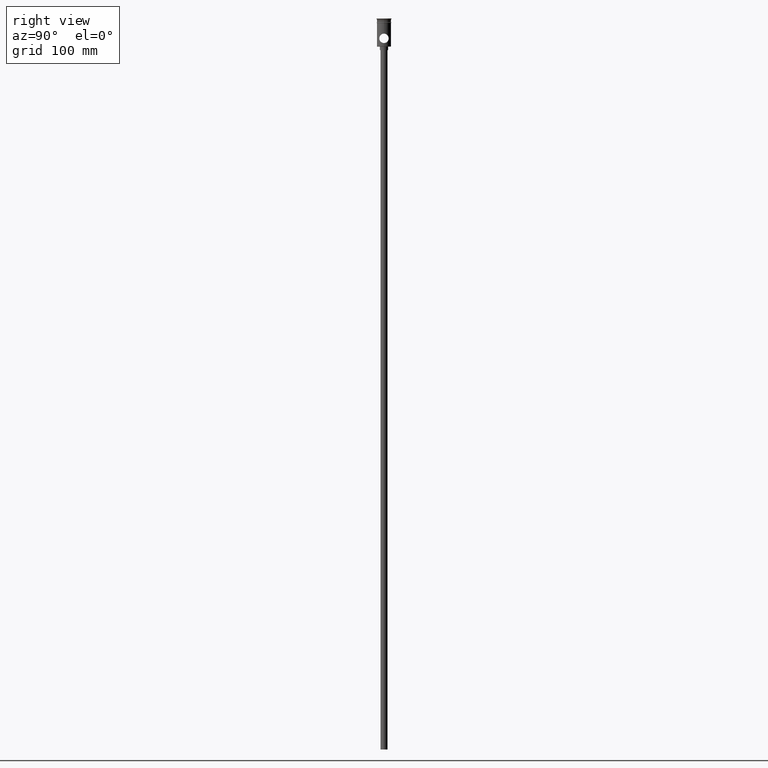
[diagram: clean part render]
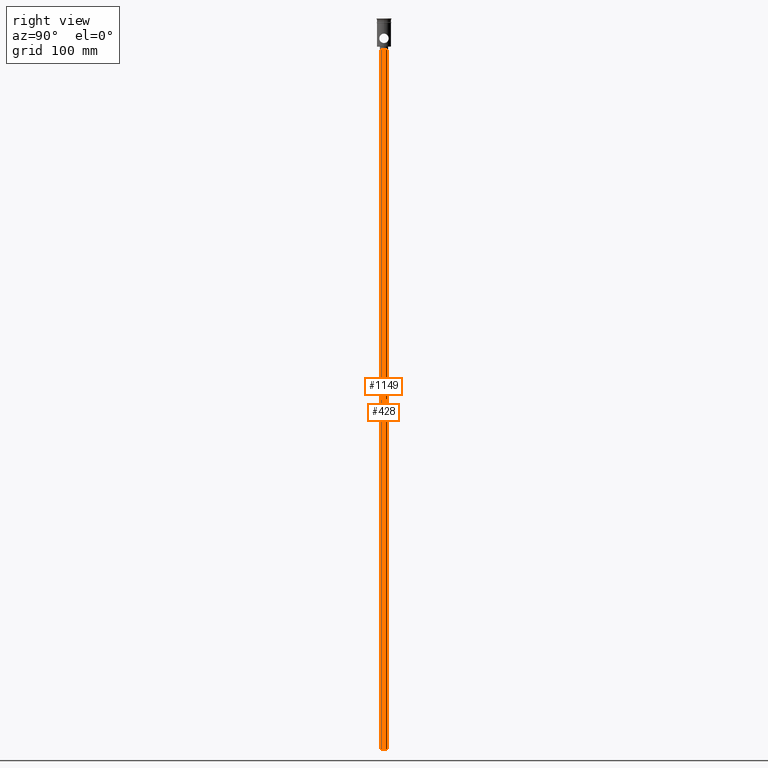
[diagram: same view with one multi-face feature highlighted, each face labeled with its STEP entity id]
A machine part, right view. The highlighted faces form ONE feature: a constant-radius fillet chain: 2 tangent blend faces with common blend radius 3 mm. The faces share edges in the B-rep.
Their STEP definitions:
[1] entity #1149 (Cylinder):
#11 = CARTESIAN_POINT ( 'NONE',  ( 3.000000000000000444, 0.000000000000000000, -624.0000000000000000 ) ) ;
#18 = CARTESIAN_POINT ( 'NONE',  ( 0.000000000000000000, 0.000000000000000000, -624.0000000000000000 ) ) ;
#20 = ORIENTED_EDGE ( 'NONE', *, *, #438, .T. ) ;
#63 = AXIS2_PLACEMENT_3D ( 'NONE', #1091, #745, #72 ) ;
#72 = DIRECTION ( 'NONE',  ( -1.000000000000000000, 0.000000000000000000, 0.000000000000000000 ) ) ;
#102 = DIRECTION ( 'NONE',  ( -0.000000000000000000, -0.000000000000000000, 1.000000000000000000 ) ) ;
#107 = ORIENTED_EDGE ( 'NONE', *, *, #878, .F. ) ;
#124 = EDGE_CURVE ( 'NONE', #692, #774, #847, .T. ) ;
#125 = VERTEX_POINT ( 'NONE', #529 ) ;
#224 = CYLINDRICAL_SURFACE ( 'NONE', #225, 3.000000000000000444 ) ;
#225 = AXIS2_PLACEMENT_3D ( 'NONE', #924, #102, #1132 ) ;
#231 = DIRECTION ( 'NONE',  ( -0.000000000000000000, -0.000000000000000000, 1.000000000000000000 ) ) ;
#254 = VECTOR ( 'NONE', #336, 1000.000000000000000 ) ;
#336 = DIRECTION ( 'NONE',  ( -0.000000000000000000, -0.000000000000000000, 1.000000000000000000 ) ) ;
#391 = EDGE_CURVE ( 'NONE', #125, #774, #1461, .T. ) ;
#438 = EDGE_CURVE ( 'NONE', #456, #692, #791, .T. ) ;
#456 = VERTEX_POINT ( 'NONE', #819 ) ;
#498 = CIRCLE ( 'NONE', #616, 3.000000000000000444 ) ;
#529 = CARTESIAN_POINT ( 'NONE',  ( -3.000000000000000444, 3.673940397442060361E-16, -624.0000000000000000 ) ) ;
#541 = CARTESIAN_POINT ( 'NONE',  ( 3.000000000000000444, 0.000000000000000000, -27.00000000000000000 ) ) ;
#574 = ORIENTED_EDGE ( 'NONE', *, *, #124, .T. ) ;
#616 = AXIS2_PLACEMENT_3D ( 'NONE', #18, #711, #927 ) ;
#650 = CARTESIAN_POINT ( 'NONE',  ( -3.000000000000000444, 3.673940397442060361E-16, -624.0000000000000000 ) ) ;
#692 = VERTEX_POINT ( 'NONE', #541 ) ;
#711 = DIRECTION ( 'NONE',  ( 0.000000000000000000, 0.000000000000000000, -1.000000000000000000 ) ) ;
#745 = DIRECTION ( 'NONE',  ( 0.000000000000000000, 0.000000000000000000, -1.000000000000000000 ) ) ;
#774 = VERTEX_POINT ( 'NONE', #790 ) ;
#790 = CARTESIAN_POINT ( 'NONE',  ( -3.000000000000000444, 3.673940397442060361E-16, -27.00000000000000000 ) ) ;
#791 = LINE ( 'NONE', #11, #873 ) ;
#805 = FACE_OUTER_BOUND ( 'NONE', #1394, .T. ) ;
#819 = CARTESIAN_POINT ( 'NONE',  ( 3.000000000000000444, 0.000000000000000000, -624.0000000000000000 ) ) ;
#847 = CIRCLE ( 'NONE', #63, 3.000000000000000444 ) ;
#873 = VECTOR ( 'NONE', #231, 1000.000000000000000 ) ;
#878 = EDGE_CURVE ( 'NONE', #456, #125, #498, .T. ) ;
#924 = CARTESIAN_POINT ( 'NONE',  ( 0.000000000000000000, 0.000000000000000000, -624.0000000000000000 ) ) ;
#927 = DIRECTION ( 'NONE',  ( -1.000000000000000000, 0.000000000000000000, 0.000000000000000000 ) ) ;
#1022 = ORIENTED_EDGE ( 'NONE', *, *, #391, .F. ) ;
#1091 = CARTESIAN_POINT ( 'NONE',  ( 0.000000000000000000, 0.000000000000000000, -27.00000000000000000 ) ) ;
#1132 = DIRECTION ( 'NONE',  ( 1.000000000000000000, 0.000000000000000000, 0.000000000000000000 ) ) ;
#1149 = ADVANCED_FACE ( 'NONE', ( #805 ), #224, .T. ) ;
#1394 = EDGE_LOOP ( 'NONE', ( #1022, #107, #20, #574 ) ) ;
#1461 = LINE ( 'NONE', #650, #254 ) ;
[2] entity #428 (Cylinder):
#2 = CIRCLE ( 'NONE', #612, 3.000000000000000444 ) ;
#11 = CARTESIAN_POINT ( 'NONE',  ( 3.000000000000000444, 0.000000000000000000, -624.0000000000000000 ) ) ;
#73 = DIRECTION ( 'NONE',  ( 0.000000000000000000, 0.000000000000000000, -1.000000000000000000 ) ) ;
#118 = DIRECTION ( 'NONE',  ( -1.000000000000000000, 0.000000000000000000, 0.000000000000000000 ) ) ;
#123 = ORIENTED_EDGE ( 'NONE', *, *, #391, .T. ) ;
#125 = VERTEX_POINT ( 'NONE', #529 ) ;
#132 = CARTESIAN_POINT ( 'NONE',  ( 0.000000000000000000, 0.000000000000000000, -624.0000000000000000 ) ) ;
#231 = DIRECTION ( 'NONE',  ( -0.000000000000000000, -0.000000000000000000, 1.000000000000000000 ) ) ;
#254 = VECTOR ( 'NONE', #336, 1000.000000000000000 ) ;
#336 = DIRECTION ( 'NONE',  ( -0.000000000000000000, -0.000000000000000000, 1.000000000000000000 ) ) ;
#338 = ORIENTED_EDGE ( 'NONE', *, *, #1190, .F. ) ;
#345 = CYLINDRICAL_SURFACE ( 'NONE', #1257, 3.000000000000000444 ) ;
#391 = EDGE_CURVE ( 'NONE', #125, #774, #1461, .T. ) ;
#428 = ADVANCED_FACE ( 'NONE', ( #433 ), #345, .T. ) ;
#433 = FACE_OUTER_BOUND ( 'NONE', #922, .T. ) ;
#438 = EDGE_CURVE ( 'NONE', #456, #692, #791, .T. ) ;
#456 = VERTEX_POINT ( 'NONE', #819 ) ;
#482 = DIRECTION ( 'NONE',  ( -0.000000000000000000, -0.000000000000000000, 1.000000000000000000 ) ) ;
#529 = CARTESIAN_POINT ( 'NONE',  ( -3.000000000000000444, 3.673940397442060361E-16, -624.0000000000000000 ) ) ;
#541 = CARTESIAN_POINT ( 'NONE',  ( 3.000000000000000444, 0.000000000000000000, -27.00000000000000000 ) ) ;
#612 = AXIS2_PLACEMENT_3D ( 'NONE', #132, #1009, #118 ) ;
#650 = CARTESIAN_POINT ( 'NONE',  ( -3.000000000000000444, 3.673940397442060361E-16, -624.0000000000000000 ) ) ;
#692 = VERTEX_POINT ( 'NONE', #541 ) ;
#774 = VERTEX_POINT ( 'NONE', #790 ) ;
#790 = CARTESIAN_POINT ( 'NONE',  ( -3.000000000000000444, 3.673940397442060361E-16, -27.00000000000000000 ) ) ;
#791 = LINE ( 'NONE', #11, #873 ) ;
#819 = CARTESIAN_POINT ( 'NONE',  ( 3.000000000000000444, 0.000000000000000000, -624.0000000000000000 ) ) ;
#873 = VECTOR ( 'NONE', #231, 1000.000000000000000 ) ;
#896 = AXIS2_PLACEMENT_3D ( 'NONE', #1093, #73, #980 ) ;
#922 = EDGE_LOOP ( 'NONE', ( #338, #123, #1118, #1008 ) ) ;
#980 = DIRECTION ( 'NONE',  ( -1.000000000000000000, 0.000000000000000000, 0.000000000000000000 ) ) ;
#1008 = ORIENTED_EDGE ( 'NONE', *, *, #438, .F. ) ;
#1009 = DIRECTION ( 'NONE',  ( 0.000000000000000000, 0.000000000000000000, -1.000000000000000000 ) ) ;
#1056 = EDGE_CURVE ( 'NONE', #774, #692, #1351, .T. ) ;
#1093 = CARTESIAN_POINT ( 'NONE',  ( 0.000000000000000000, 0.000000000000000000, -27.00000000000000000 ) ) ;
#1118 = ORIENTED_EDGE ( 'NONE', *, *, #1056, .T. ) ;
#1137 = DIRECTION ( 'NONE',  ( 1.000000000000000000, 0.000000000000000000, 0.000000000000000000 ) ) ;
#1190 = EDGE_CURVE ( 'NONE', #125, #456, #2, .T. ) ;
#1257 = AXIS2_PLACEMENT_3D ( 'NONE', #1264, #482, #1137 ) ;
#1264 = CARTESIAN_POINT ( 'NONE',  ( 0.000000000000000000, 0.000000000000000000, -624.0000000000000000 ) ) ;
#1351 = CIRCLE ( 'NONE', #896, 3.000000000000000444 ) ;
#1461 = LINE ( 'NONE', #650, #254 ) ;